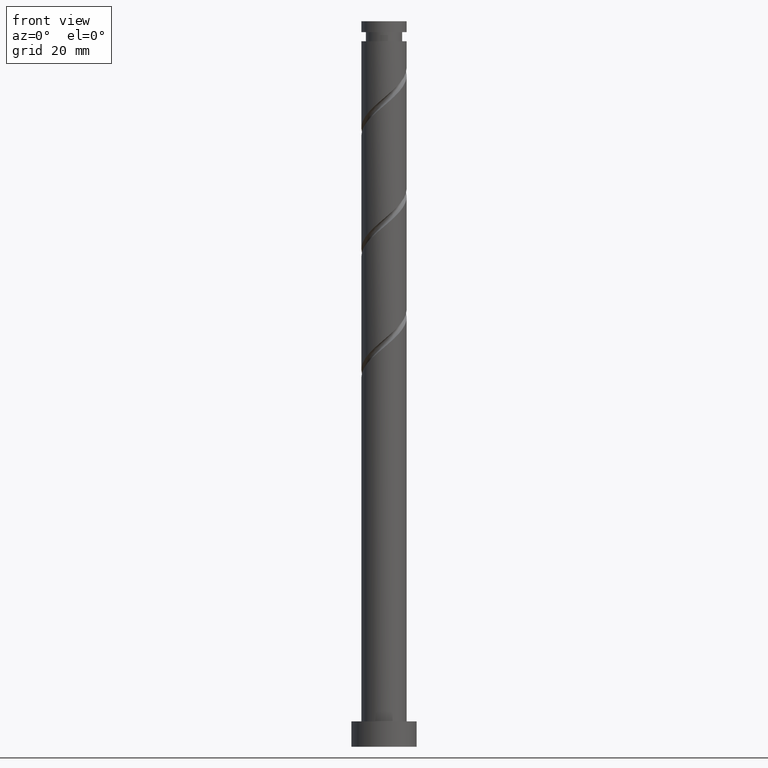
[diagram: clean part render]
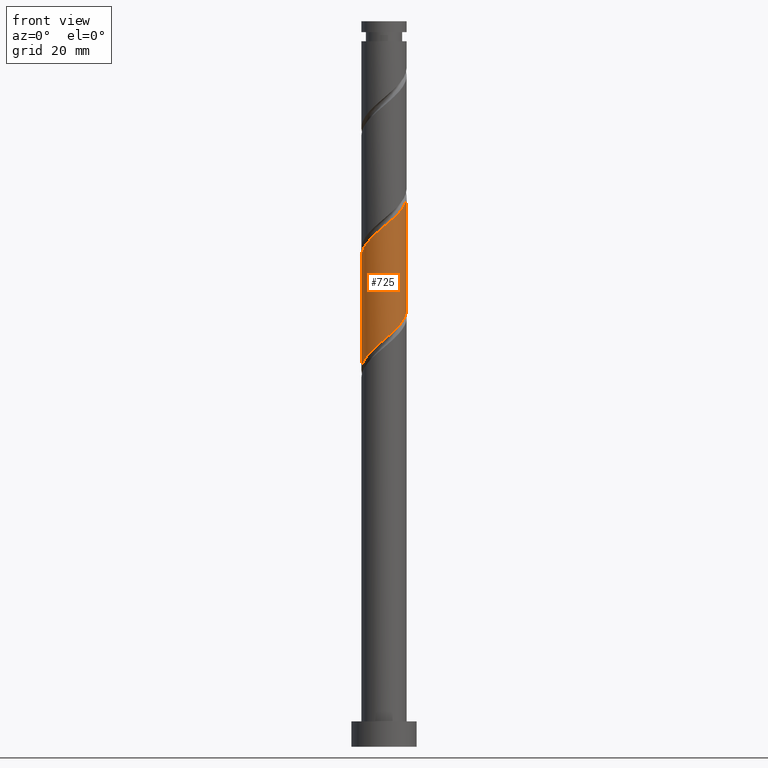
[diagram: same view with one face highlighted and labeled with its STEP entity id]
A machine part, front view. The second image highlights one B-rep face of the part: STEP entity #725.
In plain terms, the highlighted cylindrical surface (edge-blend (fillet) strip) has radius 6.25 mm, axis along (-0, -0, -1).
Its self-contained STEP definition (entity closure, byte-faithful):
#37 = VECTOR ( 'NONE', #380, 1000.000000000000000 ) ;
#44 = CARTESIAN_POINT ( 'NONE',  ( 2.765603112218015802, -5.664890601253175006, 114.6173141648789198 ) ) ;
#61 = CARTESIAN_POINT ( 'NONE',  ( -0.4373627486604795278, -6.288740726453962537, 111.8395363871011199 ) ) ;
#63 = CARTESIAN_POINT ( 'NONE',  ( 0.000000000000000000, 0.000000000000000000, 200.0000000000000000 ) ) ;
#68 = CARTESIAN_POINT ( 'NONE',  ( 4.682538449988046025, -4.139605496225884806, 116.7006474982122342 ) ) ;
#82 = CARTESIAN_POINT ( 'NONE',  ( -6.125000000000009770, -1.243734296383278259, 136.1450919426567054 ) ) ;
#139 = CARTESIAN_POINT ( 'NONE',  ( 6.250000000000009770, -0.1921371978604607678, 151.5850282660851462 ) ) ;
#193 = EDGE_CURVE ( 'NONE', #1367, #1677, #758, .T. ) ;
#217 = CARTESIAN_POINT ( 'NONE',  ( -5.227527852592706026, -3.523137614235945847, 138.2284252759899914 ) ) ;
#241 = DIRECTION ( 'NONE',  ( -0.000000000000000000, -0.000000000000000000, -1.000000000000000000 ) ) ;
#246 = CARTESIAN_POINT ( 'NONE',  ( -6.250000000000009770, -4.845026159732916609E-15, 135.0815252874466239 ) ) ;
#311 = CARTESIAN_POINT ( 'NONE',  ( -6.238197808971717606, -0.3839115733348686388, 104.2006474982122626 ) ) ;
#350 = CARTESIAN_POINT ( 'NONE',  ( -6.250000000000009770, -4.845026159732916609E-15, 135.0815252874466239 ) ) ;
#380 = DIRECTION ( 'NONE',  ( -0.000000000000000000, -0.000000000000000000, -1.000000000000000000 ) ) ;
#388 = CARTESIAN_POINT ( 'NONE',  ( 5.926272746371334499, -1.985394503774124075, 150.0339808315456480 ) ) ;
#399 = CARTESIAN_POINT ( 'NONE',  ( 4.139605496225885695, -4.682538449988056684, 147.2562030537678197 ) ) ;
#436 = CARTESIAN_POINT ( 'NONE',  ( 1.205185895330212587, -6.187654891489475339, 113.2284252759900340 ) ) ;
#448 =( BOUNDED_CURVE ( )  B_SPLINE_CURVE ( 2, ( #473, #1020, #1415, #1278, #746, #851, #68, #1003, #1286, #44, #1262, #436, #1671, #61, #878, #1536, #614, #860, #1151, #458, #1378, #719, #587, #1391, #311, #1551, #1691 ),
 .UNSPECIFIED., .F., .T. ) 
 B_SPLINE_CURVE_WITH_KNOTS ( ( 3, 2, 2, 2, 2, 2, 2, 2, 2, 2, 2, 2, 2, 3 ),
 ( 0.8045317669814462391, 0.8125000000000000000, 0.8229166666666666297, 0.8333333333333333703, 0.8437500000000000000, 0.8541666666666666297, 0.8645833333333333703, 0.8750000000000000000, 0.8854166666666666297, 0.8958333333333333703, 0.9062500000000000000, 0.9166666666666666297, 0.9270833333333333703, 0.9295317669814463502 ),
 .UNSPECIFIED. ) 
 CURVE ( )  GEOMETRIC_REPRESENTATION_ITEM ( )  RATIONAL_B_SPLINE_CURVE ( ( 0.9062941362546365065, 0.9031415850403408108, 0.9090909090909161661, 0.9013135103398346448, 0.9090909090909161661, 0.9013135103398346448, 0.9090909090909161661, 0.9013135103398346448, 0.9090909090909161661, 0.9013135103398346448, 0.9090909090909161661, 0.9013135103398346448, 0.9090909090909161661, 0.9013135103398346448, 0.9090909090909161661, 0.9013135103398346448, 0.9090909090909161661, 0.9013135103398346448, 0.9090909090909161661, 0.9013135103398346448, 0.9090909090909161661, 0.9013135103398346448, 0.9090909090909161661, 0.9013135103398346448, 0.9090909090909161661, 0.9072628343904098891, 0.9062941362546365065 ) ) 
 REPRESENTATION_ITEM ( '' )  );
#458 = CARTESIAN_POINT ( 'NONE',  ( -4.756073378215821990, -4.137549047383398459, 107.6728697204344485 ) ) ;
#473 = CARTESIAN_POINT ( 'NONE',  ( 6.250000000000000888, 8.015228461780437926E-15, 120.5419919312001014 ) ) ;
#485 = CARTESIAN_POINT ( 'NONE',  ( -6.250000000000000000, 0.000000000000000000, 200.0000000000000000 ) ) ;
#511 = EDGE_CURVE ( 'NONE', #939, #1043, #668, .T. ) ;
#539 = CARTESIAN_POINT ( 'NONE',  ( -4.137549047383409118, -4.756073378215827319, 139.6173141648788771 ) ) ;
#559 = ORIENTED_EDGE ( 'NONE', *, *, #193, .T. ) ;
#574 = CARTESIAN_POINT ( 'NONE',  ( 6.250000000000009770, 8.972270666172067868E-16, 151.7481919541133095 ) ) ;
#587 = CARTESIAN_POINT ( 'NONE',  ( -5.926272746371323841, -1.985394503774116304, 105.5895363871011483 ) ) ;
#614 = CARTESIAN_POINT ( 'NONE',  ( -2.786621729171010919, -5.594393563069364639, 109.7562030537678197 ) ) ;
#664 = CARTESIAN_POINT ( 'NONE',  ( -6.249999999999999112, 7.895598186231474471E-15, 103.8753252645334157 ) ) ;
#668 = LINE ( 'NONE', #818, #37 ) ;
#690 = VECTOR ( 'NONE', #241, 1000.000000000000000 ) ;
#691 =( BOUNDED_CURVE ( )  B_SPLINE_CURVE ( 2, ( #350, #761, #82, #896, #1421, #217, #1165, #539, #1639, #1612, #701, #1211, #1083, #1117, #953, #711, #835, #1346, #399, #1621, #961, #1486, #388, #1466, #844, #139, #574 ),
 .UNSPECIFIED., .F., .T. ) 
 B_SPLINE_CURVE_WITH_KNOTS ( ( 3, 2, 2, 2, 2, 2, 2, 2, 2, 2, 2, 2, 2, 3 ),
 ( 0.3045317669814464057, 0.3125000000000000000, 0.3229166666666666297, 0.3333333333333333703, 0.3437500000000000000, 0.3541666666666666297, 0.3645833333333333703, 0.3750000000000000000, 0.3854166666666666297, 0.3958333333333333703, 0.4062500000000000000, 0.4166666666666666297, 0.4270833333333333703, 0.4295317669814463502 ),
 .UNSPECIFIED. ) 
 CURVE ( )  GEOMETRIC_REPRESENTATION_ITEM ( )  RATIONAL_B_SPLINE_CURVE ( ( 0.9062941362546428348, 0.9031415850403472501, 0.9090909090909224943, 0.9013135103398410841, 0.9090909090909224943, 0.9013135103398410841, 0.9090909090909224943, 0.9013135103398410841, 0.9090909090909224943, 0.9013135103398410841, 0.9090909090909224943, 0.9013135103398410841, 0.9090909090909224943, 0.9013135103398410841, 0.9090909090909224943, 0.9013135103398410841, 0.9090909090909224943, 0.9013135103398410841, 0.9090909090909224943, 0.9013135103398410841, 0.9090909090909224943, 0.9013135103398410841, 0.9090909090909224943, 0.9013135103398410841, 0.9090909090909224943, 0.9072628343904162174, 0.9062941362546428348 ) ) 
 REPRESENTATION_ITEM ( '' )  );
#701 = CARTESIAN_POINT ( 'NONE',  ( -1.985394503774124075, -5.926272746371334499, 141.7006474982122484 ) ) ;
#711 = CARTESIAN_POINT ( 'NONE',  ( 2.050105844106077768, -5.961259273546051674, 145.1728697204345337 ) ) ;
#719 = CARTESIAN_POINT ( 'NONE',  ( -5.664890601253175006, -2.765603112218015802, 106.2839808315455485 ) ) ;
#725 = ADVANCED_FACE ( 'NONE', ( #740 ), #1273, .T. ) ;
#740 = FACE_OUTER_BOUND ( 'NONE', #1425, .T. ) ;
#746 = CARTESIAN_POINT ( 'NONE',  ( 5.594393563069363751, -2.786621729171014028, 118.0895363871011199 ) ) ;
#758 = LINE ( 'NONE', #485, #690 ) ;
#761 = CARTESIAN_POINT ( 'NONE',  ( -6.250000000000008882, -0.6281486345370157487, 135.6149516566358670 ) ) ;
#818 = CARTESIAN_POINT ( 'NONE',  ( 6.250000000000000000, 7.654042494670957606E-16, 200.0000000000000000 ) ) ;
#835 = CARTESIAN_POINT ( 'NONE',  ( 2.786621729171010919, -5.594393563069378850, 145.8673141648789624 ) ) ;
#844 = CARTESIAN_POINT ( 'NONE',  ( 6.238197808971729152, -0.3839115733348761328, 151.4228697204345053 ) ) ;
#851 = CARTESIAN_POINT ( 'NONE',  ( 5.227527852592693591, -3.523137614235945403, 117.3950919426566628 ) ) ;
#860 = CARTESIAN_POINT ( 'NONE',  ( -3.523137614235942294, -5.227527852592697144, 109.0617586093233342 ) ) ;
#878 = CARTESIAN_POINT ( 'NONE',  ( -1.243734296383278259, -6.125000000000000000, 111.1450919426566770 ) ) ;
#896 = CARTESIAN_POINT ( 'NONE',  ( -5.961259273546051674, -2.050105844106077768, 136.8395363871011057 ) ) ;
#939 = VERTEX_POINT ( 'NONE', #1457 ) ;
#953 = CARTESIAN_POINT ( 'NONE',  ( 1.243734296383277815, -6.125000000000009770, 144.4784252759900482 ) ) ;
#961 = CARTESIAN_POINT ( 'NONE',  ( 5.210481989734505603, -3.451576079800717789, 148.6450919426567339 ) ) ;
#973 = EDGE_CURVE ( 'NONE', #1367, #939, #691, .T. ) ;
#976 = AXIS2_PLACEMENT_3D ( 'NONE', #63, #1028, #1015 ) ;
#1003 = CARTESIAN_POINT ( 'NONE',  ( 4.137549047383397571, -4.756073378215821990, 116.0062030537677771 ) ) ;
#1015 = DIRECTION ( 'NONE',  ( -1.000000000000000000, 0.000000000000000000, 0.000000000000000000 ) ) ;
#1020 = CARTESIAN_POINT ( 'NONE',  ( 6.250000000000001776, -0.6281486345370053126, 120.0085655620108156 ) ) ;
#1028 = DIRECTION ( 'NONE',  ( -0.000000000000000000, -0.000000000000000000, -1.000000000000000000 ) ) ;
#1035 = ORIENTED_EDGE ( 'NONE', *, *, #973, .F. ) ;
#1043 = VERTEX_POINT ( 'NONE', #1098 ) ;
#1083 = CARTESIAN_POINT ( 'NONE',  ( -0.3839115733348728021, -6.238197808971729152, 143.0895363871011909 ) ) ;
#1098 = CARTESIAN_POINT ( 'NONE',  ( 6.250000000000000888, 8.015228461780437926E-15, 120.5419919312001014 ) ) ;
#1117 = CARTESIAN_POINT ( 'NONE',  ( 0.4373627486604749759, -6.288740726453970531, 143.7839808315455343 ) ) ;
#1151 = CARTESIAN_POINT ( 'NONE',  ( -4.139605496225883918, -4.682538449988046025, 108.3673141648789198 ) ) ;
#1161 = ORIENTED_EDGE ( 'NONE', *, *, #1183, .F. ) ;
#1165 = CARTESIAN_POINT ( 'NONE',  ( -4.682538449988056684, -4.139605496225887471, 138.9228697204345053 ) ) ;
#1183 = EDGE_CURVE ( 'NONE', #1043, #1677, #448, .T. ) ;
#1211 = CARTESIAN_POINT ( 'NONE',  ( -1.205185895330220580, -6.187654891489485998, 142.3950919426567339 ) ) ;
#1262 = CARTESIAN_POINT ( 'NONE',  ( 1.985394503774115860, -5.926272746371323841, 113.9228697204344769 ) ) ;
#1273 = CYLINDRICAL_SURFACE ( 'NONE', #976, 6.250000000000000000 ) ;
#1278 = CARTESIAN_POINT ( 'NONE',  ( 5.961259273546034798, -2.050105844106081765, 118.7839808315455485 ) ) ;
#1286 = CARTESIAN_POINT ( 'NONE',  ( 3.451576079800705799, -5.210481989734499386, 115.3117586093233484 ) ) ;
#1346 = CARTESIAN_POINT ( 'NONE',  ( 3.523137614235944515, -5.227527852592706914, 146.5617586093233626 ) ) ;
#1367 = VERTEX_POINT ( 'NONE', #246 ) ;
#1378 = CARTESIAN_POINT ( 'NONE',  ( -5.210481989734496722, -3.451576079800708019, 106.9784252759900198 ) ) ;
#1391 = CARTESIAN_POINT ( 'NONE',  ( -6.187654891489475339, -1.205185895330214807, 104.8950919426567054 ) ) ;
#1415 = CARTESIAN_POINT ( 'NONE',  ( 6.125000000000000000, -1.243734296383278481, 119.4784252759900340 ) ) ;
#1421 = CARTESIAN_POINT ( 'NONE',  ( -5.594393563069377961, -2.786621729171013584, 137.5339808315456480 ) ) ;
#1425 = EDGE_LOOP ( 'NONE', ( #1744, #1035, #559, #1161 ) ) ;
#1457 = CARTESIAN_POINT ( 'NONE',  ( 6.250000000000009770, 8.972270666172067868E-16, 151.7481919541132811 ) ) ;
#1466 = CARTESIAN_POINT ( 'NONE',  ( 6.187654891489485109, -1.205185895330223245, 150.7284252759900198 ) ) ;
#1486 = CARTESIAN_POINT ( 'NONE',  ( 5.664890601253181224, -2.765603112218025128, 149.3395363871011625 ) ) ;
#1536 = CARTESIAN_POINT ( 'NONE',  ( -2.050105844106078656, -5.961259273546039239, 110.4506474982122484 ) ) ;
#1551 = CARTESIAN_POINT ( 'NONE',  ( -6.250000000000000000, -0.1921371978604533848, 104.0384889525615790 ) ) ;
#1612 = CARTESIAN_POINT ( 'NONE',  ( -2.765603112218025128, -5.664890601253182112, 141.0062030537677629 ) ) ;
#1621 = CARTESIAN_POINT ( 'NONE',  ( 4.756073378215827319, -4.137549047383409118, 147.9506474982122768 ) ) ;
#1639 = CARTESIAN_POINT ( 'NONE',  ( -3.451576079800716013, -5.210481989734506492, 140.3117586093233911 ) ) ;
#1671 = CARTESIAN_POINT ( 'NONE',  ( 0.3839115733348669735, -6.238197808971718494, 112.5339808315455912 ) ) ;
#1677 = VERTEX_POINT ( 'NONE', #664 ) ;
#1691 = CARTESIAN_POINT ( 'NONE',  ( -6.249999999999999112, 7.895598186231474471E-15, 103.8753252645334157 ) ) ;
#1744 = ORIENTED_EDGE ( 'NONE', *, *, #511, .F. ) ;